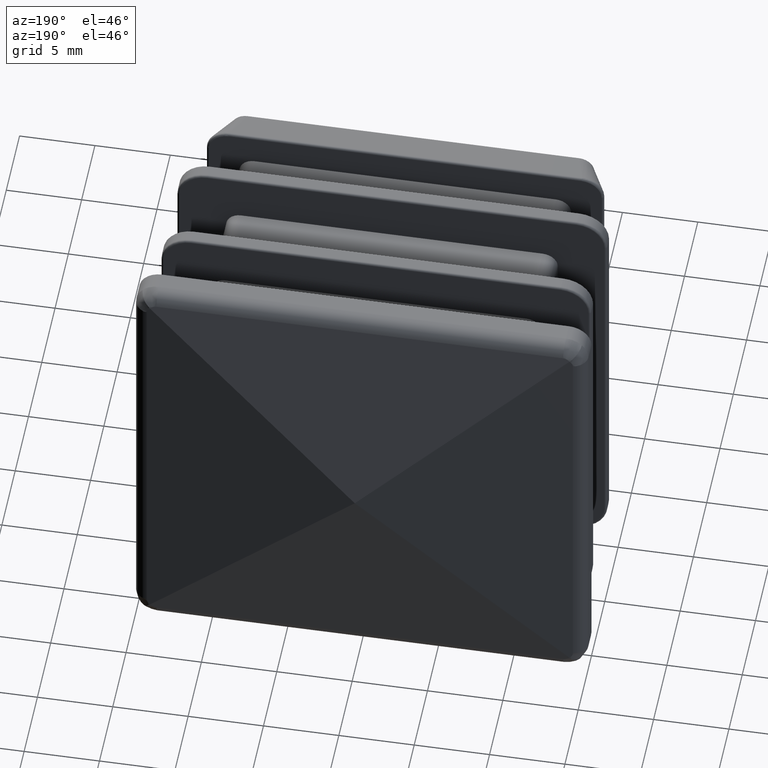
[diagram: clean part render]
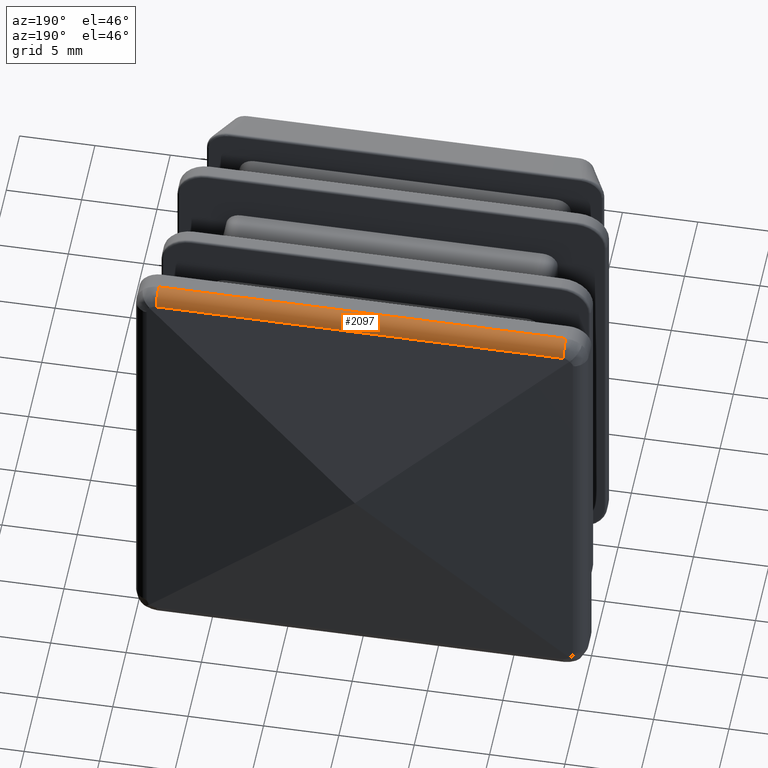
[diagram: same view with one face highlighted and labeled with its STEP entity id]
A machine part, auxiliary view. The second image highlights one B-rep face of the part: STEP entity #2097.
In plain terms, the highlighted cylindrical surface (edge-blend (fillet) strip) has radius 1 mm, axis along (1, 0, 0).
Its self-contained STEP definition (entity closure, byte-faithful):
#75=CYLINDRICAL_SURFACE('',#2253,1.);
#148=LINE('',#3664,#312);
#149=LINE('',#3665,#313);
#312=VECTOR('',#2582,27.);
#313=VECTOR('',#2583,27.);
#493=FACE_OUTER_BOUND('',#629,.T.);
#629=EDGE_LOOP('',(#1486,#1487,#1488,#1489));
#769=CIRCLE('',#2251,1.);
#770=CIRCLE('',#2254,1.);
#916=VERTEX_POINT('',#3642);
#917=VERTEX_POINT('',#3644);
#919=VERTEX_POINT('',#3661);
#920=VERTEX_POINT('',#3662);
#1128=EDGE_CURVE('',#916,#917,#769,.T.);
#1131=EDGE_CURVE('',#919,#920,#770,.T.);
#1132=EDGE_CURVE('',#920,#917,#148,.T.);
#1133=EDGE_CURVE('',#916,#919,#149,.T.);
#1486=ORIENTED_EDGE('',*,*,#1131,.T.);
#1487=ORIENTED_EDGE('',*,*,#1132,.T.);
#1488=ORIENTED_EDGE('',*,*,#1128,.F.);
#1489=ORIENTED_EDGE('',*,*,#1133,.T.);
#2097=ADVANCED_FACE('',(#493),#75,.T.);
#2251=AXIS2_PLACEMENT_3D('',#3645,#2574,#2575);
#2253=AXIS2_PLACEMENT_3D('',#3660,#2578,#2579);
#2254=AXIS2_PLACEMENT_3D('',#3663,#2580,#2581);
#2574=DIRECTION('center_axis',(1.,0.,0.));
#2575=DIRECTION('ref_axis',(0.,0.991227900682635,0.132163720091019));
#2578=DIRECTION('center_axis',(1.,4.20018074499028E-17,0.));
#2579=DIRECTION('ref_axis',(0.,0.658724631355538,0.752384117353304));
#2580=DIRECTION('center_axis',(1.,0.,0.));
#2581=DIRECTION('ref_axis',(0.,0.991227900682635,0.132163720091019));
#2582=DIRECTION('',(1.,4.20018074499028E-17,0.));
#2583=DIRECTION('',(-1.,-4.20018074499028E-17,0.));
#3642=CARTESIAN_POINT('',(13.5,2.11571150398787,14.132163720091));
#3644=CARTESIAN_POINT('',(13.5,1.12448360330523,15.));
#3645=CARTESIAN_POINT('Origin',(13.5,1.12448360330523,14.));
#3660=CARTESIAN_POINT('Origin',(-7.5,1.12448360330523,14.));
#3661=CARTESIAN_POINT('',(-13.5,2.11571150398786,14.132163720091));
#3662=CARTESIAN_POINT('',(-13.5,1.12448360330523,15.));
#3663=CARTESIAN_POINT('Origin',(-13.5,1.12448360330523,14.));
#3664=CARTESIAN_POINT('',(-7.5,1.12448360330523,15.));
#3665=CARTESIAN_POINT('',(-7.5,2.11571150398786,14.132163720091));